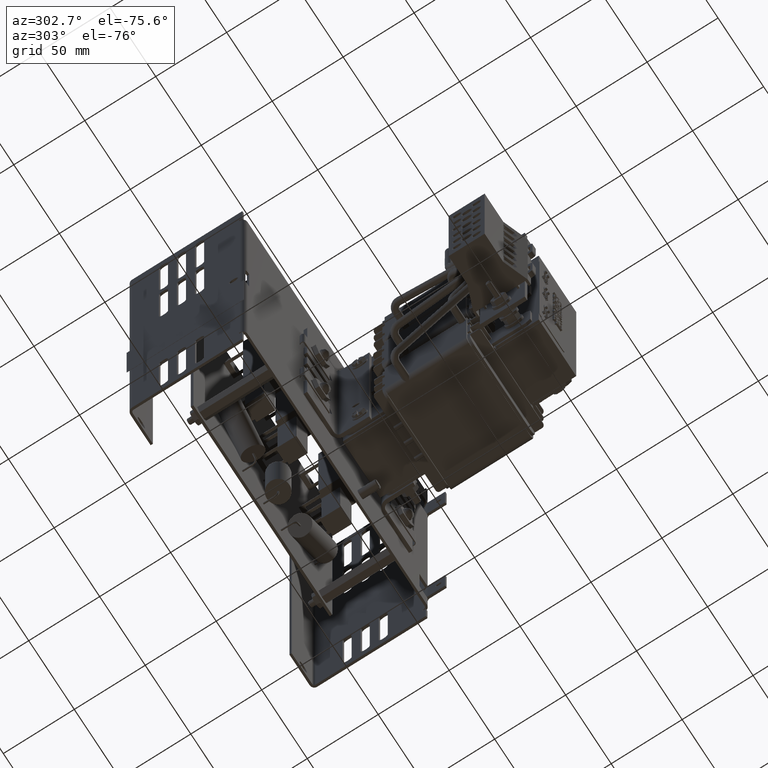
[diagram: clean part render]
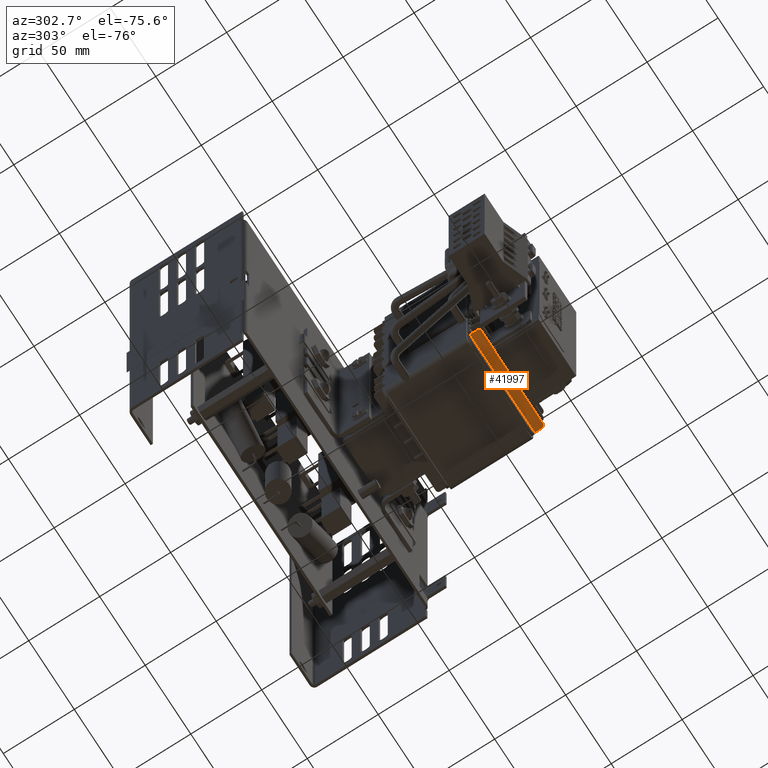
[diagram: same view with one face highlighted and labeled with its STEP entity id]
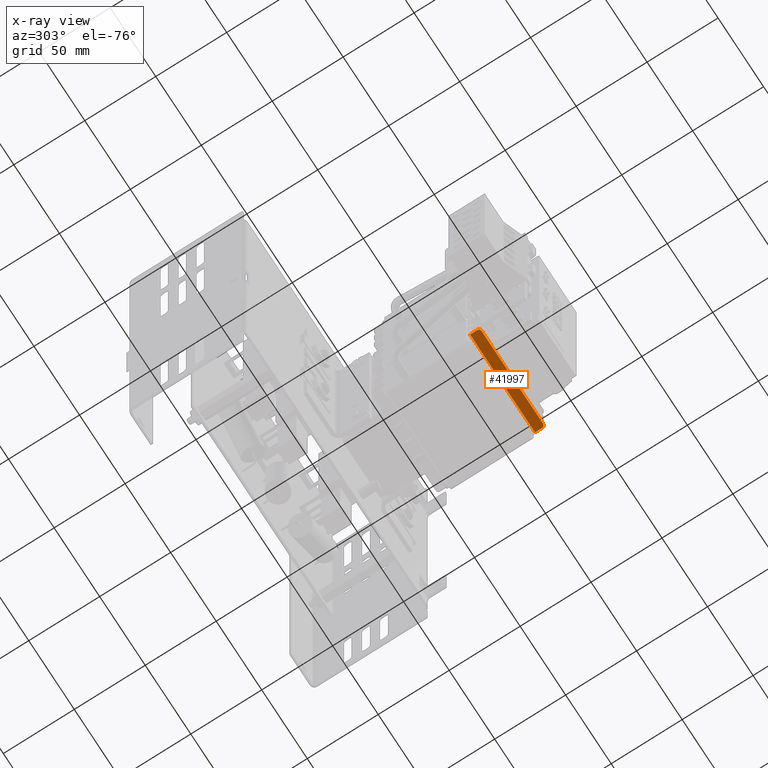
[diagram: x-ray of the same camera — body ghosted, the highlighted face saturated]
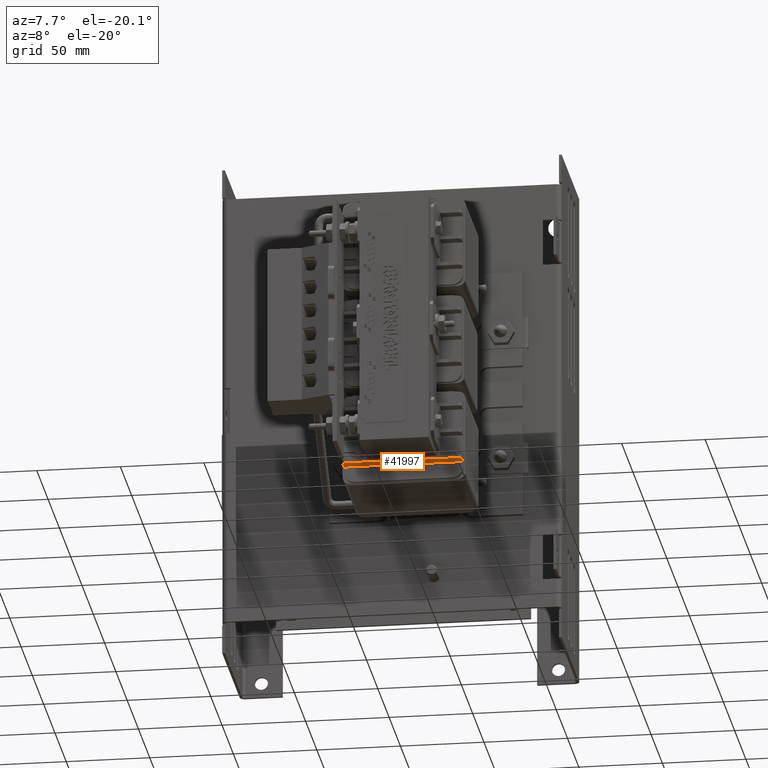
[diagram: same view with one face highlighted and labeled with its STEP entity id]
A machine part, auxiliary view. The second image highlights one B-rep face of the part: STEP entity #41997.
The next image is the same camera in x-ray: the body ghosted, the highlighted face saturated — about 0% of this face is hidden behind the body in this view.
A second angle (auxiliary view) of the same face is appended — the face is thin or edge-on in the first view.
In plain terms, the highlighted planar face has unit normal (-0, -0, -1).
Its self-contained STEP definition (entity closure, byte-faithful):
#2439=PLANE('',#45841);
#4915=FACE_OUTER_BOUND('',#7422,.T.);
#7422=EDGE_LOOP('',(#33251,#33252,#33253,#33254,#33255,#33256));
#10243=LINE('',#63306,#14288);
#10282=LINE('',#63399,#14327);
#10292=LINE('',#63423,#14337);
#10640=LINE('',#64378,#14685);
#14288=VECTOR('',#51749,0.393700787401575);
#14327=VECTOR('',#51816,0.393700787401575);
#14337=VECTOR('',#51836,0.393700787401575);
#14685=VECTOR('',#52788,0.393700787401575);
#17694=CIRCLE('',#45495,0.075);
#17699=CIRCLE('',#45503,0.075);
#19589=VERTEX_POINT('',#63303);
#19590=VERTEX_POINT('',#63305);
#19617=VERTEX_POINT('',#63369);
#19630=VERTEX_POINT('',#63397);
#19633=VERTEX_POINT('',#63407);
#19639=VERTEX_POINT('',#63421);
#24224=EDGE_CURVE('',#19590,#19589,#10243,.T.);
#24256=EDGE_CURVE('',#19617,#19589,#17694,.T.);
#24271=EDGE_CURVE('',#19630,#19617,#10282,.T.);
#24276=EDGE_CURVE('',#19633,#19630,#17699,.T.);
#24283=EDGE_CURVE('',#19639,#19633,#10292,.T.);
#24766=EDGE_CURVE('',#19639,#19590,#10640,.T.);
#33251=ORIENTED_EDGE('',*,*,#24256,.F.);
#33252=ORIENTED_EDGE('',*,*,#24271,.F.);
#33253=ORIENTED_EDGE('',*,*,#24276,.F.);
#33254=ORIENTED_EDGE('',*,*,#24283,.F.);
#33255=ORIENTED_EDGE('',*,*,#24766,.T.);
#33256=ORIENTED_EDGE('',*,*,#24224,.T.);
#41997=ADVANCED_FACE('',(#4915),#2439,.T.);
#45495=AXIS2_PLACEMENT_3D('',#63370,#51795,#51796);
#45503=AXIS2_PLACEMENT_3D('',#63409,#51826,#51827);
#45841=AXIS2_PLACEMENT_3D('',#64437,#52879,#52880);
#51749=DIRECTION('',(-6.83577162266155E-93,0.,-1.));
#51795=DIRECTION('center_axis',(1.,4.26137848593868E-16,0.));
#51796=DIRECTION('ref_axis',(8.24195516369435E-16,0.707106781186548,-0.707106781186547));
#51816=DIRECTION('',(3.40934736702694E-124,1.,4.98750917266526E-32));
#51826=DIRECTION('center_axis',(1.,4.26137848593868E-16,0.));
#51827=DIRECTION('ref_axis',(-8.24195516369435E-16,-0.707106781186548,-0.707106781186547));
#51836=DIRECTION('',(0.,0.,-1.));
#52788=DIRECTION('',(-4.26137848593868E-16,1.,-4.98750917266526E-32));
#52879=DIRECTION('center_axis',(-1.,-4.26137848593868E-16,0.));
#52880=DIRECTION('ref_axis',(0.,0.,1.));
#63303=CARTESIAN_POINT('',(-0.0749999999999994,2.2255,0.075));
#63305=CARTESIAN_POINT('',(-0.0749999999999994,2.2255,0.275));
#63306=CARTESIAN_POINT('',(-0.0749999999999994,2.2255,0.275));
#63369=CARTESIAN_POINT('',(-0.0749999999999994,2.1505,-8.74191357972564E-17));
#63370=CARTESIAN_POINT('Origin',(-0.0749999999999985,2.1505,0.075));
#63397=CARTESIAN_POINT('',(-0.0749999999999994,-0.5055,-8.74191357972565E-17));
#63399=CARTESIAN_POINT('',(-0.0749999999999994,2.2255,-8.74191357972564E-17));
#63407=CARTESIAN_POINT('',(-0.0749999999999994,-0.580499999999999,0.075));
#63409=CARTESIAN_POINT('Origin',(-0.0749999999999998,-0.5055,0.075));
#63421=CARTESIAN_POINT('',(-0.0749999999999994,-0.580499999999999,0.275));
#63423=CARTESIAN_POINT('',(-0.0749999999999994,-0.580499999999999,0.275));
#64378=CARTESIAN_POINT('',(-0.0749999999999997,0.325549919734527,0.275));
#64437=CARTESIAN_POINT('Origin',(-0.0749999999999994,-0.0750000000000004,
0.));